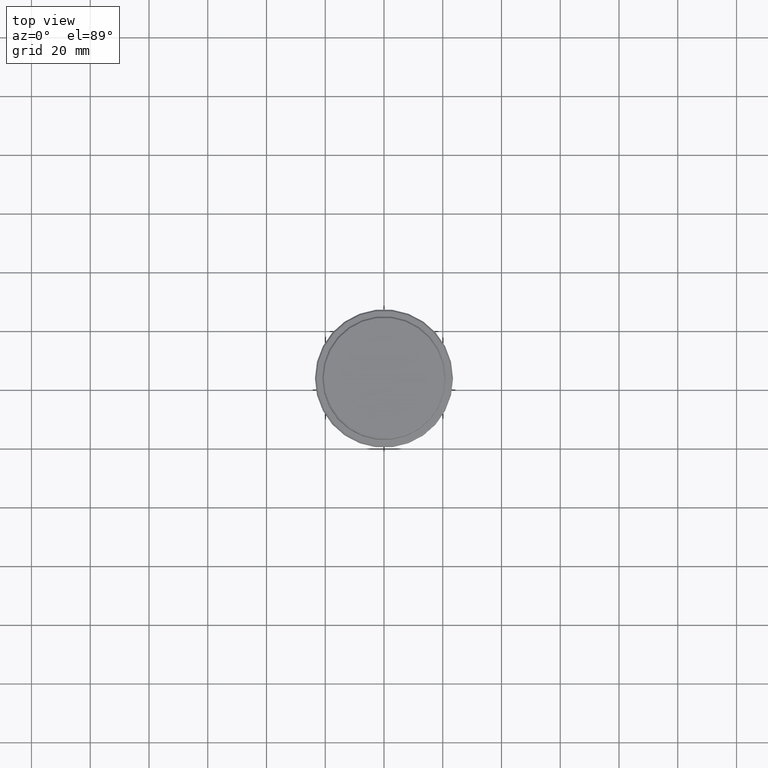
[diagram: clean part render]
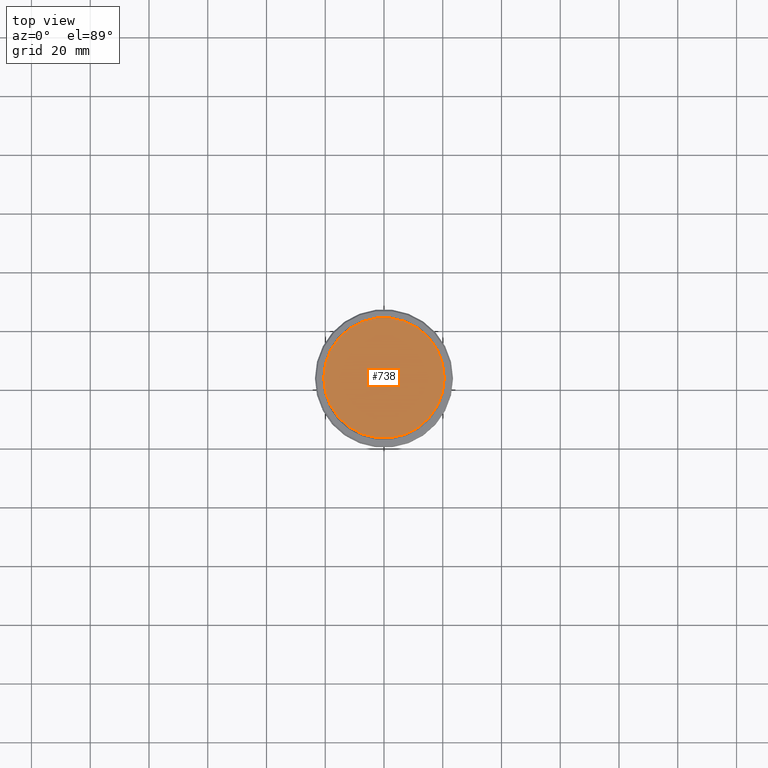
[diagram: same view with one face highlighted and labeled with its STEP entity id]
A machine part, top view. The second image highlights one B-rep face of the part: STEP entity #738.
In plain terms, the highlighted planar face has unit normal (0, -0, 1).
Its self-contained STEP definition (entity closure, byte-faithful):
#53 = CARTESIAN_POINT ( 'NONE',  ( 0.000000000000000000, 0.000000000000000000, 0.000000000000000000 ) ) ;
#58 = DIRECTION ( 'NONE',  ( 1.000000000000000000, 0.000000000000000000, 0.000000000000000000 ) ) ;
#128 = AXIS2_PLACEMENT_3D ( 'NONE', #53, #410, #1040 ) ;
#179 = VERTEX_POINT ( 'NONE', #290 ) ;
#184 = DIRECTION ( 'NONE',  ( -0.000000000000000000, -0.000000000000000000, 1.000000000000000000 ) ) ;
#195 = EDGE_CURVE ( 'NONE', #179, #1119, #1228, .T. ) ;
#259 = EDGE_LOOP ( 'NONE', ( #1148, #1012 ) ) ;
#290 = CARTESIAN_POINT ( 'NONE',  ( 20.49999999999998934, 2.541142108230757480E-15, 0.000000000000000000 ) ) ;
#409 = CIRCLE ( 'NONE', #896, 20.49999999999998934 ) ;
#410 = DIRECTION ( 'NONE',  ( 0.000000000000000000, -0.000000000000000000, 1.000000000000000000 ) ) ;
#414 = DIRECTION ( 'NONE',  ( -0.000000000000000000, -0.000000000000000000, 1.000000000000000000 ) ) ;
#712 = CARTESIAN_POINT ( 'NONE',  ( 0.000000000000000000, 0.000000000000000000, 0.000000000000000000 ) ) ;
#738 = ADVANCED_FACE ( 'NONE', ( #1327 ), #1023, .T. ) ;
#896 = AXIS2_PLACEMENT_3D ( 'NONE', #947, #184, #58 ) ;
#947 = CARTESIAN_POINT ( 'NONE',  ( 0.000000000000000000, 0.000000000000000000, 0.000000000000000000 ) ) ;
#997 = AXIS2_PLACEMENT_3D ( 'NONE', #712, #414, #1141 ) ;
#1012 = ORIENTED_EDGE ( 'NONE', *, *, #195, .T. ) ;
#1023 = PLANE ( 'NONE',  #128 ) ;
#1040 = DIRECTION ( 'NONE',  ( 1.000000000000000000, 0.000000000000000000, 0.000000000000000000 ) ) ;
#1119 = VERTEX_POINT ( 'NONE', #1237 ) ;
#1141 = DIRECTION ( 'NONE',  ( 1.000000000000000000, 0.000000000000000000, 0.000000000000000000 ) ) ;
#1148 = ORIENTED_EDGE ( 'NONE', *, *, #1258, .T. ) ;
#1228 = CIRCLE ( 'NONE', #997, 20.49999999999998934 ) ;
#1237 = CARTESIAN_POINT ( 'NONE',  ( -20.49999999999998934, 0.000000000000000000, 0.000000000000000000 ) ) ;
#1258 = EDGE_CURVE ( 'NONE', #1119, #179, #409, .T. ) ;
#1327 = FACE_OUTER_BOUND ( 'NONE', #259, .T. ) ;